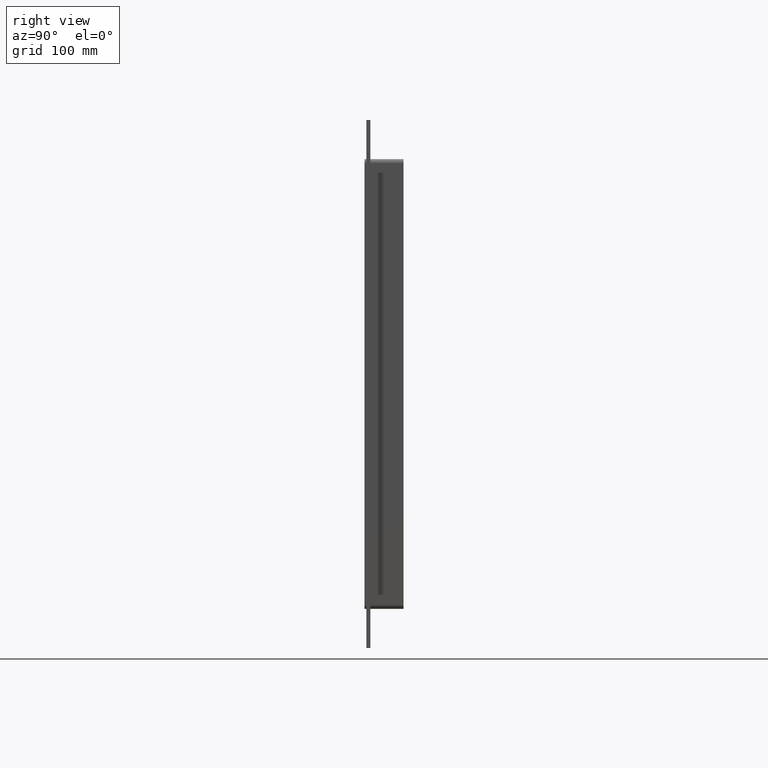
[diagram: clean part render]
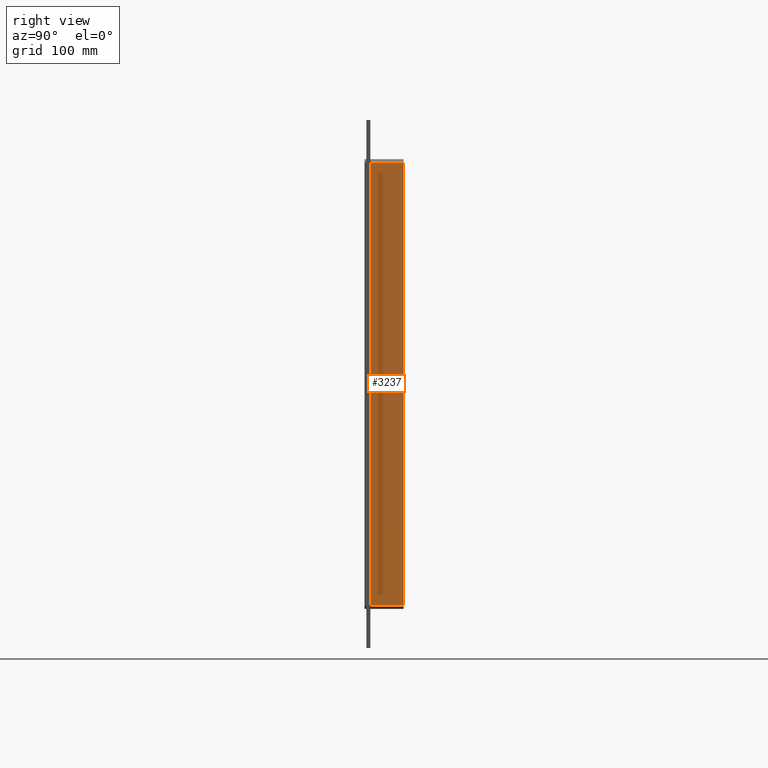
[diagram: same view with one face highlighted and labeled with its STEP entity id]
A machine part, right view. The second image highlights one B-rep face of the part: STEP entity #3237.
In plain terms, the highlighted planar face has unit normal (1, 0, 0).
Its self-contained STEP definition (entity closure, byte-faithful):
#1351=CARTESIAN_POINT('',(327.25,57.0,-339.0));
#1352=VERTEX_POINT('',#1351);
#1402=CARTESIAN_POINT('',(327.25,57.0,339.00000000000006));
#1403=VERTEX_POINT('',#1402);
#1411=CARTESIAN_POINT('',(327.25,57.0,339.00000000000006));
#1412=DIRECTION('',(0.0,0.0,-1.0));
#1413=VECTOR('',#1412,678.0);
#1414=LINE('',#1411,#1413);
#1415=EDGE_CURVE('',#1403,#1352,#1414,.T.);
#2864=CARTESIAN_POINT('',(327.25,6.000000000000001,-339.00000000000006));
#2865=VERTEX_POINT('',#2864);
#2873=CARTESIAN_POINT('',(327.25,6.000000000000001,339.00000000000006));
#2874=VERTEX_POINT('',#2873);
#2875=CARTESIAN_POINT('',(327.25,6.000000000000001,339.00000000000006));
#2876=DIRECTION('',(0.0,0.0,-1.0));
#2877=VECTOR('',#2876,678.00000000000011);
#2878=LINE('',#2875,#2877);
#2879=EDGE_CURVE('',#2874,#2865,#2878,.T.);
#3188=CARTESIAN_POINT('',(327.25,6.000000000000001,339.00000000000006));
#3189=DIRECTION('',(0.0,1.0,0.0));
#3190=VECTOR('',#3189,51.0);
#3191=LINE('',#3188,#3190);
#3192=EDGE_CURVE('',#2874,#1403,#3191,.T.);
#3221=CARTESIAN_POINT('',(327.25,0.0,345.00000000000006));
#3222=DIRECTION('',(1.0,0.0,0.0));
#3223=DIRECTION('',(0.0,0.0,-1.0));
#3224=AXIS2_PLACEMENT_3D('',#3221,#3222,#3223);
#3225=PLANE('',#3224);
#3226=ORIENTED_EDGE('',*,*,#2879,.T.);
#3227=CARTESIAN_POINT('',(327.25,57.0,-339.00000000000006));
#3228=DIRECTION('',(0.0,-1.0,0.0));
#3229=VECTOR('',#3228,51.0);
#3230=LINE('',#3227,#3229);
#3231=EDGE_CURVE('',#1352,#2865,#3230,.T.);
#3232=ORIENTED_EDGE('',*,*,#3231,.F.);
#3233=ORIENTED_EDGE('',*,*,#1415,.F.);
#3234=ORIENTED_EDGE('',*,*,#3192,.F.);
#3235=EDGE_LOOP('',(#3226,#3232,#3233,#3234));
#3236=FACE_OUTER_BOUND('',#3235,.T.);
#3237=ADVANCED_FACE('',(#3236),#3225,.T.);